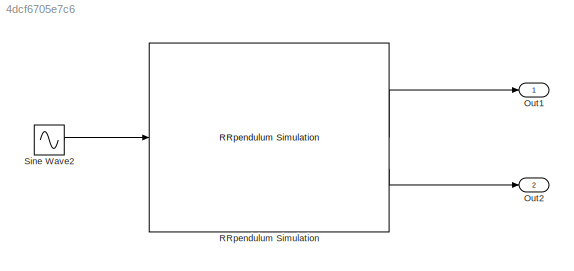
MODEL slx_4dcf6705e7c6
KIND model
CONFIG AbsTol = 1e-8
CONFIG EnableMultiTasking = off
CONFIG FixedStep = auto
CONFIG MaxStep = auto
CONFIG MinStep = auto
CONFIG PreLoadFcn = run RRpendulum_Parameters_num.m
CONFIG RelTol = 1e-7
CONFIG SampleTimeConstraint = Unconstrained
CONFIG SolverName = VariableStepAuto
CONFIG StartTime = 0.0
CONFIG StopTime = 30
BLOCK [Outport] Out1
BLOCK [Outport] Out2
  Port = 2
BLOCK [Reference] RRpendulum Simulation  REF=digtwin_labo_lib/RRpendulum Simulation  (lib defined in slx_912b749dec0a)
  SourceBlock = digtwin_labo_lib/RRpendulum Simulation
BLOCK [Sin] Sine Wave2
  Amplitude = v1ampl*2*pi*v1freq
  Frequency = 2*pi*v1freq
  Phase = pi/2
  SampleTime = 0
LINE RRpendulum Simulation:1 -> Out1:1
LINE RRpendulum Simulation:2 -> Out2:1
LINE Sine Wave2:1 -> RRpendulum Simulation:1
